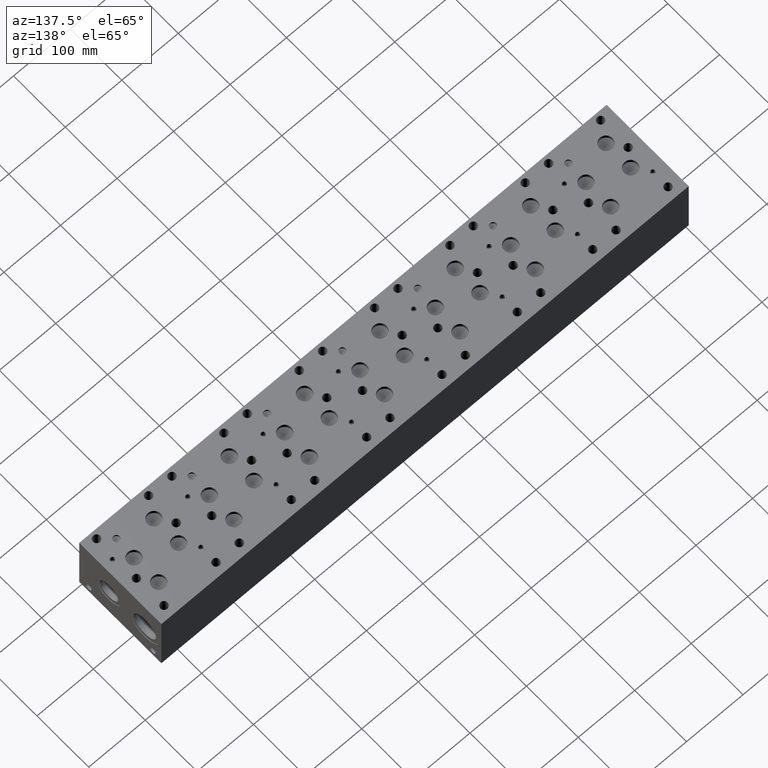
[diagram: clean part render]
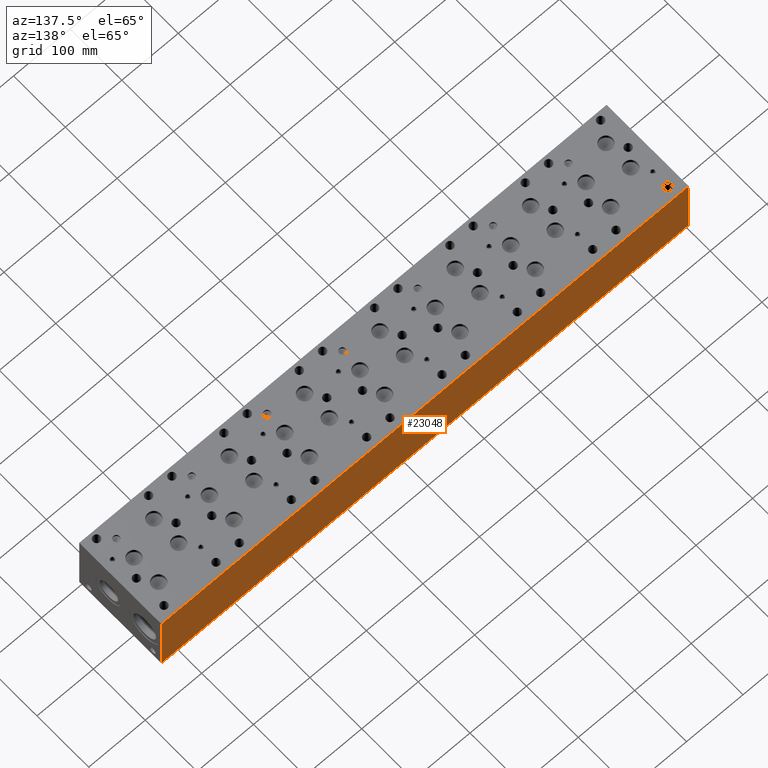
[diagram: same view with one face highlighted and labeled with its STEP entity id]
A machine part, auxiliary view. The second image highlights one B-rep face of the part: STEP entity #23048.
In plain terms, the highlighted planar face has unit normal (0, 1, 0).
Its self-contained STEP definition (entity closure, byte-faithful):
#3565=FACE_OUTER_BOUND('',#4974,.T.);
#4974=EDGE_LOOP('',(#20432,#20433,#20434,#20435));
#5127=LINE('',#30949,#6964);
#5189=LINE('',#31227,#7026);
#6905=LINE('',#40297,#8742);
#6906=LINE('',#40298,#8743);
#6964=VECTOR('',#25093,10.);
#7026=VECTOR('',#25209,10.);
#8742=VECTOR('',#30683,10.);
#8743=VECTOR('',#30684,10.);
#8793=VERTEX_POINT('',#30946);
#8794=VERTEX_POINT('',#30948);
#8852=VERTEX_POINT('',#31220);
#8855=VERTEX_POINT('',#31225);
#11076=EDGE_CURVE('',#8793,#8794,#5127,.T.);
#11162=EDGE_CURVE('',#8852,#8855,#5189,.T.);
#14212=EDGE_CURVE('',#8793,#8852,#6905,.T.);
#14213=EDGE_CURVE('',#8794,#8855,#6906,.T.);
#20432=ORIENTED_EDGE('',*,*,#14212,.T.);
#20433=ORIENTED_EDGE('',*,*,#11162,.T.);
#20434=ORIENTED_EDGE('',*,*,#14213,.F.);
#20435=ORIENTED_EDGE('',*,*,#11076,.F.);
#21176=PLANE('',#24991);
#23048=ADVANCED_FACE('',(#3565),#21176,.T.);
#24991=AXIS2_PLACEMENT_3D('',#40296,#30681,#30682);
#25093=DIRECTION('',(0.,0.,1.));
#25209=DIRECTION('',(0.,0.,1.));
#30681=DIRECTION('center_axis',(0.,1.,0.));
#30682=DIRECTION('ref_axis',(-1.,0.,0.));
#30683=DIRECTION('',(-1.,0.,0.));
#30684=DIRECTION('',(-1.,0.,0.));
#30946=CARTESIAN_POINT('',(933.45,158.75,0.));
#30948=CARTESIAN_POINT('',(933.45,158.75,120.65));
#30949=CARTESIAN_POINT('',(933.45,158.75,0.));
#31220=CARTESIAN_POINT('',(0.,158.75,0.));
#31225=CARTESIAN_POINT('',(0.,158.75,120.65));
#31227=CARTESIAN_POINT('',(0.,158.75,0.));
#40296=CARTESIAN_POINT('Origin',(933.45,158.75,0.));
#40297=CARTESIAN_POINT('',(933.45,158.75,0.));
#40298=CARTESIAN_POINT('',(933.45,158.75,120.65));